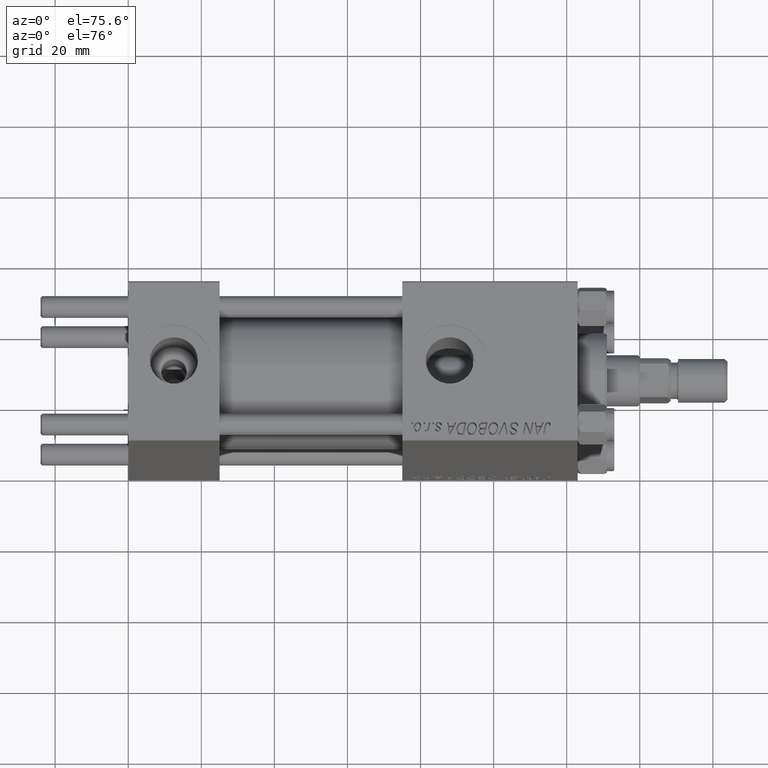
[diagram: clean part render]
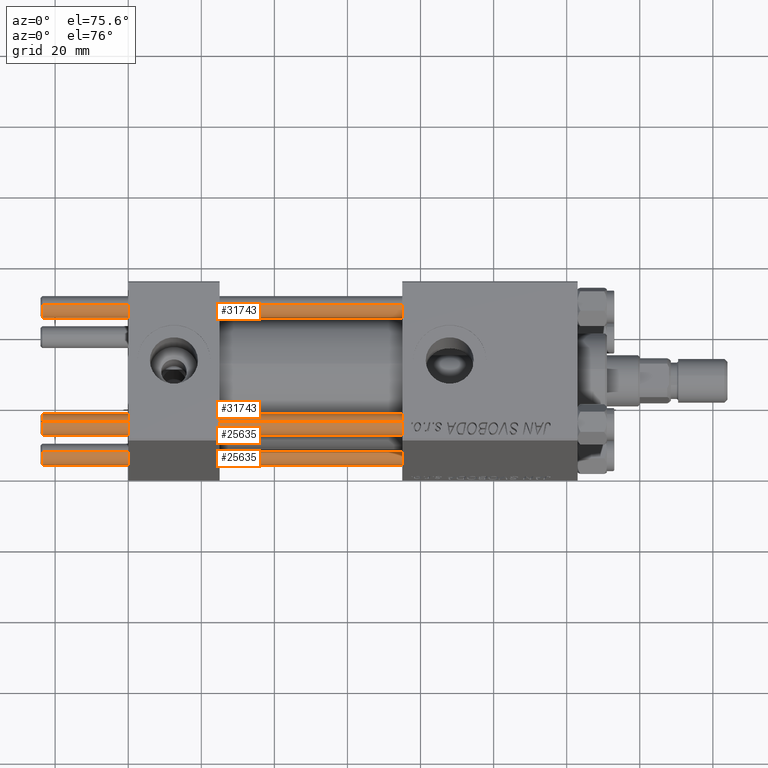
[diagram: same view with one multi-face feature highlighted, each face labeled with its STEP entity id]
A machine part, auxiliary view. The highlighted faces form ONE feature: a constant-radius fillet chain: 4 tangent blend faces with common blend radius 3 mm. The faces share edges in the B-rep.
Their STEP definitions:
[1] entity #31743 (Cylinder):
#1412 = ORIENTED_EDGE ( 'NONE', *, *, #13985, .F. ) ;
#1765 = EDGE_CURVE ( 'NONE', #4943, #39025, #11490, .T. ) ;
#3527 = EDGE_LOOP ( 'NONE', ( #1412, #29597, #15287, #28158 ) ) ;
#4943 = VERTEX_POINT ( 'NONE', #23508 ) ;
#5906 = DIRECTION ( 'NONE',  ( -0.000000000000000000, -0.000000000000000000, -1.000000000000000000 ) ) ;
#6917 = VECTOR ( 'NONE', #24463, 1000.000000000000000 ) ;
#7112 = CARTESIAN_POINT ( 'NONE',  ( 3.000000000000000444, 3.673940397442060361E-16, 157.0000000000000000 ) ) ;
#7113 = CARTESIAN_POINT ( 'NONE',  ( 0.000000000000000000, 0.000000000000000000, 156.5000000000000284 ) ) ;
#8027 = AXIS2_PLACEMENT_3D ( 'NONE', #7113, #38284, #23187 ) ;
#8826 = FACE_OUTER_BOUND ( 'NONE', #3527, .T. ) ;
#10663 = VERTEX_POINT ( 'NONE', #11849 ) ;
#11490 = CIRCLE ( 'NONE', #13197, 3.000000000000000444 ) ;
#11849 = CARTESIAN_POINT ( 'NONE',  ( 3.000000000000000444, 3.673940397442060361E-16, 156.5000000000000284 ) ) ;
#13197 = AXIS2_PLACEMENT_3D ( 'NONE', #50346, #22594, #34236 ) ;
#13305 = CARTESIAN_POINT ( 'NONE',  ( 0.000000000000000000, 0.000000000000000000, 157.0000000000000000 ) ) ;
#13985 = EDGE_CURVE ( 'NONE', #10663, #39025, #27156, .T. ) ;
#15287 = ORIENTED_EDGE ( 'NONE', *, *, #46477, .T. ) ;
#17244 = CYLINDRICAL_SURFACE ( 'NONE', #51083, 3.000000000000000444 ) ;
#18201 = DIRECTION ( 'NONE',  ( -0.000000000000000000, -0.000000000000000000, -1.000000000000000000 ) ) ;
#18368 = EDGE_CURVE ( 'NONE', #10663, #19441, #42587, .T. ) ;
#19441 = VERTEX_POINT ( 'NONE', #46559 ) ;
#21983 = DIRECTION ( 'NONE',  ( -1.000000000000000000, 0.000000000000000000, 0.000000000000000000 ) ) ;
#22594 = DIRECTION ( 'NONE',  ( -0.000000000000000000, -0.000000000000000000, 1.000000000000000000 ) ) ;
#23187 = DIRECTION ( 'NONE',  ( 1.000000000000000000, 0.000000000000000000, 0.000000000000000000 ) ) ;
#23508 = CARTESIAN_POINT ( 'NONE',  ( -3.000000000000000444, 0.000000000000000000, 0.4999999999999726885 ) ) ;
#24463 = DIRECTION ( 'NONE',  ( -0.000000000000000000, -0.000000000000000000, -1.000000000000000000 ) ) ;
#27156 = LINE ( 'NONE', #7112, #39061 ) ;
#28158 = ORIENTED_EDGE ( 'NONE', *, *, #1765, .T. ) ;
#29597 = ORIENTED_EDGE ( 'NONE', *, *, #18368, .T. ) ;
#31743 = ADVANCED_FACE ( 'NONE', ( #8826 ), #17244, .T. ) ;
#32149 = LINE ( 'NONE', #36892, #6917 ) ;
#34236 = DIRECTION ( 'NONE',  ( 1.000000000000000000, 0.000000000000000000, 0.000000000000000000 ) ) ;
#36892 = CARTESIAN_POINT ( 'NONE',  ( -3.000000000000000444, 0.000000000000000000, 157.0000000000000000 ) ) ;
#38284 = DIRECTION ( 'NONE',  ( 0.000000000000000000, 0.000000000000000000, -1.000000000000000000 ) ) ;
#39025 = VERTEX_POINT ( 'NONE', #41265 ) ;
#39061 = VECTOR ( 'NONE', #18201, 1000.000000000000000 ) ;
#41265 = CARTESIAN_POINT ( 'NONE',  ( 3.000000000000000444, 3.673940397442060361E-16, 0.4999999999999726885 ) ) ;
#42587 = CIRCLE ( 'NONE', #8027, 3.000000000000000444 ) ;
#46477 = EDGE_CURVE ( 'NONE', #19441, #4943, #32149, .T. ) ;
#46559 = CARTESIAN_POINT ( 'NONE',  ( -3.000000000000000444, 0.000000000000000000, 156.5000000000000284 ) ) ;
#50346 = CARTESIAN_POINT ( 'NONE',  ( 0.000000000000000000, 0.000000000000000000, 0.4999999999999726885 ) ) ;
#51083 = AXIS2_PLACEMENT_3D ( 'NONE', #13305, #5906, #21983 ) ;
[2] entity #25635 (Cylinder):
#4097 = EDGE_CURVE ( 'NONE', #39025, #4943, #42668, .T. ) ;
#4943 = VERTEX_POINT ( 'NONE', #23508 ) ;
#6917 = VECTOR ( 'NONE', #24463, 1000.000000000000000 ) ;
#7112 = CARTESIAN_POINT ( 'NONE',  ( 3.000000000000000444, 3.673940397442060361E-16, 157.0000000000000000 ) ) ;
#10663 = VERTEX_POINT ( 'NONE', #11849 ) ;
#11849 = CARTESIAN_POINT ( 'NONE',  ( 3.000000000000000444, 3.673940397442060361E-16, 156.5000000000000284 ) ) ;
#11960 = DIRECTION ( 'NONE',  ( 1.000000000000000000, 0.000000000000000000, 0.000000000000000000 ) ) ;
#13006 = CIRCLE ( 'NONE', #23948, 3.000000000000000444 ) ;
#13985 = EDGE_CURVE ( 'NONE', #10663, #39025, #27156, .T. ) ;
#14304 = ORIENTED_EDGE ( 'NONE', *, *, #16329, .T. ) ;
#16329 = EDGE_CURVE ( 'NONE', #19441, #10663, #13006, .T. ) ;
#18201 = DIRECTION ( 'NONE',  ( -0.000000000000000000, -0.000000000000000000, -1.000000000000000000 ) ) ;
#18645 = CYLINDRICAL_SURFACE ( 'NONE', #21433, 3.000000000000000444 ) ;
#19090 = CARTESIAN_POINT ( 'NONE',  ( 0.000000000000000000, 0.000000000000000000, 0.4999999999999726885 ) ) ;
#19441 = VERTEX_POINT ( 'NONE', #46559 ) ;
#21433 = AXIS2_PLACEMENT_3D ( 'NONE', #34508, #26573, #34766 ) ;
#22971 = CARTESIAN_POINT ( 'NONE',  ( 0.000000000000000000, 0.000000000000000000, 156.5000000000000284 ) ) ;
#23508 = CARTESIAN_POINT ( 'NONE',  ( -3.000000000000000444, 0.000000000000000000, 0.4999999999999726885 ) ) ;
#23948 = AXIS2_PLACEMENT_3D ( 'NONE', #22971, #25906, #42024 ) ;
#24463 = DIRECTION ( 'NONE',  ( -0.000000000000000000, -0.000000000000000000, -1.000000000000000000 ) ) ;
#25635 = ADVANCED_FACE ( 'NONE', ( #42954 ), #18645, .T. ) ;
#25906 = DIRECTION ( 'NONE',  ( 0.000000000000000000, 0.000000000000000000, -1.000000000000000000 ) ) ;
#26573 = DIRECTION ( 'NONE',  ( -0.000000000000000000, -0.000000000000000000, -1.000000000000000000 ) ) ;
#27156 = LINE ( 'NONE', #7112, #39061 ) ;
#27909 = EDGE_LOOP ( 'NONE', ( #14304, #36777, #41435, #51118 ) ) ;
#32149 = LINE ( 'NONE', #36892, #6917 ) ;
#34508 = CARTESIAN_POINT ( 'NONE',  ( 0.000000000000000000, 0.000000000000000000, 157.0000000000000000 ) ) ;
#34766 = DIRECTION ( 'NONE',  ( -1.000000000000000000, 0.000000000000000000, 0.000000000000000000 ) ) ;
#35727 = DIRECTION ( 'NONE',  ( -0.000000000000000000, -0.000000000000000000, 1.000000000000000000 ) ) ;
#36777 = ORIENTED_EDGE ( 'NONE', *, *, #13985, .T. ) ;
#36892 = CARTESIAN_POINT ( 'NONE',  ( -3.000000000000000444, 0.000000000000000000, 157.0000000000000000 ) ) ;
#39025 = VERTEX_POINT ( 'NONE', #41265 ) ;
#39061 = VECTOR ( 'NONE', #18201, 1000.000000000000000 ) ;
#39380 = AXIS2_PLACEMENT_3D ( 'NONE', #19090, #35727, #11960 ) ;
#41265 = CARTESIAN_POINT ( 'NONE',  ( 3.000000000000000444, 3.673940397442060361E-16, 0.4999999999999726885 ) ) ;
#41435 = ORIENTED_EDGE ( 'NONE', *, *, #4097, .T. ) ;
#42024 = DIRECTION ( 'NONE',  ( 1.000000000000000000, 0.000000000000000000, 0.000000000000000000 ) ) ;
#42668 = CIRCLE ( 'NONE', #39380, 3.000000000000000444 ) ;
#42954 = FACE_OUTER_BOUND ( 'NONE', #27909, .T. ) ;
#46477 = EDGE_CURVE ( 'NONE', #19441, #4943, #32149, .T. ) ;
#46559 = CARTESIAN_POINT ( 'NONE',  ( -3.000000000000000444, 0.000000000000000000, 156.5000000000000284 ) ) ;
#51118 = ORIENTED_EDGE ( 'NONE', *, *, #46477, .F. ) ;
[3] entity #31743 (Cylinder):
#1412 = ORIENTED_EDGE ( 'NONE', *, *, #13985, .F. ) ;
#1765 = EDGE_CURVE ( 'NONE', #4943, #39025, #11490, .T. ) ;
#3527 = EDGE_LOOP ( 'NONE', ( #1412, #29597, #15287, #28158 ) ) ;
#4943 = VERTEX_POINT ( 'NONE', #23508 ) ;
#5906 = DIRECTION ( 'NONE',  ( -0.000000000000000000, -0.000000000000000000, -1.000000000000000000 ) ) ;
#6917 = VECTOR ( 'NONE', #24463, 1000.000000000000000 ) ;
#7112 = CARTESIAN_POINT ( 'NONE',  ( 3.000000000000000444, 3.673940397442060361E-16, 157.0000000000000000 ) ) ;
#7113 = CARTESIAN_POINT ( 'NONE',  ( 0.000000000000000000, 0.000000000000000000, 156.5000000000000284 ) ) ;
#8027 = AXIS2_PLACEMENT_3D ( 'NONE', #7113, #38284, #23187 ) ;
#8826 = FACE_OUTER_BOUND ( 'NONE', #3527, .T. ) ;
#10663 = VERTEX_POINT ( 'NONE', #11849 ) ;
#11490 = CIRCLE ( 'NONE', #13197, 3.000000000000000444 ) ;
#11849 = CARTESIAN_POINT ( 'NONE',  ( 3.000000000000000444, 3.673940397442060361E-16, 156.5000000000000284 ) ) ;
#13197 = AXIS2_PLACEMENT_3D ( 'NONE', #50346, #22594, #34236 ) ;
#13305 = CARTESIAN_POINT ( 'NONE',  ( 0.000000000000000000, 0.000000000000000000, 157.0000000000000000 ) ) ;
#13985 = EDGE_CURVE ( 'NONE', #10663, #39025, #27156, .T. ) ;
#15287 = ORIENTED_EDGE ( 'NONE', *, *, #46477, .T. ) ;
#17244 = CYLINDRICAL_SURFACE ( 'NONE', #51083, 3.000000000000000444 ) ;
#18201 = DIRECTION ( 'NONE',  ( -0.000000000000000000, -0.000000000000000000, -1.000000000000000000 ) ) ;
#18368 = EDGE_CURVE ( 'NONE', #10663, #19441, #42587, .T. ) ;
#19441 = VERTEX_POINT ( 'NONE', #46559 ) ;
#21983 = DIRECTION ( 'NONE',  ( -1.000000000000000000, 0.000000000000000000, 0.000000000000000000 ) ) ;
#22594 = DIRECTION ( 'NONE',  ( -0.000000000000000000, -0.000000000000000000, 1.000000000000000000 ) ) ;
#23187 = DIRECTION ( 'NONE',  ( 1.000000000000000000, 0.000000000000000000, 0.000000000000000000 ) ) ;
#23508 = CARTESIAN_POINT ( 'NONE',  ( -3.000000000000000444, 0.000000000000000000, 0.4999999999999726885 ) ) ;
#24463 = DIRECTION ( 'NONE',  ( -0.000000000000000000, -0.000000000000000000, -1.000000000000000000 ) ) ;
#27156 = LINE ( 'NONE', #7112, #39061 ) ;
#28158 = ORIENTED_EDGE ( 'NONE', *, *, #1765, .T. ) ;
#29597 = ORIENTED_EDGE ( 'NONE', *, *, #18368, .T. ) ;
#31743 = ADVANCED_FACE ( 'NONE', ( #8826 ), #17244, .T. ) ;
#32149 = LINE ( 'NONE', #36892, #6917 ) ;
#34236 = DIRECTION ( 'NONE',  ( 1.000000000000000000, 0.000000000000000000, 0.000000000000000000 ) ) ;
#36892 = CARTESIAN_POINT ( 'NONE',  ( -3.000000000000000444, 0.000000000000000000, 157.0000000000000000 ) ) ;
#38284 = DIRECTION ( 'NONE',  ( 0.000000000000000000, 0.000000000000000000, -1.000000000000000000 ) ) ;
#39025 = VERTEX_POINT ( 'NONE', #41265 ) ;
#39061 = VECTOR ( 'NONE', #18201, 1000.000000000000000 ) ;
#41265 = CARTESIAN_POINT ( 'NONE',  ( 3.000000000000000444, 3.673940397442060361E-16, 0.4999999999999726885 ) ) ;
#42587 = CIRCLE ( 'NONE', #8027, 3.000000000000000444 ) ;
#46477 = EDGE_CURVE ( 'NONE', #19441, #4943, #32149, .T. ) ;
#46559 = CARTESIAN_POINT ( 'NONE',  ( -3.000000000000000444, 0.000000000000000000, 156.5000000000000284 ) ) ;
#50346 = CARTESIAN_POINT ( 'NONE',  ( 0.000000000000000000, 0.000000000000000000, 0.4999999999999726885 ) ) ;
#51083 = AXIS2_PLACEMENT_3D ( 'NONE', #13305, #5906, #21983 ) ;
[4] entity #25635 (Cylinder):
#4097 = EDGE_CURVE ( 'NONE', #39025, #4943, #42668, .T. ) ;
#4943 = VERTEX_POINT ( 'NONE', #23508 ) ;
#6917 = VECTOR ( 'NONE', #24463, 1000.000000000000000 ) ;
#7112 = CARTESIAN_POINT ( 'NONE',  ( 3.000000000000000444, 3.673940397442060361E-16, 157.0000000000000000 ) ) ;
#10663 = VERTEX_POINT ( 'NONE', #11849 ) ;
#11849 = CARTESIAN_POINT ( 'NONE',  ( 3.000000000000000444, 3.673940397442060361E-16, 156.5000000000000284 ) ) ;
#11960 = DIRECTION ( 'NONE',  ( 1.000000000000000000, 0.000000000000000000, 0.000000000000000000 ) ) ;
#13006 = CIRCLE ( 'NONE', #23948, 3.000000000000000444 ) ;
#13985 = EDGE_CURVE ( 'NONE', #10663, #39025, #27156, .T. ) ;
#14304 = ORIENTED_EDGE ( 'NONE', *, *, #16329, .T. ) ;
#16329 = EDGE_CURVE ( 'NONE', #19441, #10663, #13006, .T. ) ;
#18201 = DIRECTION ( 'NONE',  ( -0.000000000000000000, -0.000000000000000000, -1.000000000000000000 ) ) ;
#18645 = CYLINDRICAL_SURFACE ( 'NONE', #21433, 3.000000000000000444 ) ;
#19090 = CARTESIAN_POINT ( 'NONE',  ( 0.000000000000000000, 0.000000000000000000, 0.4999999999999726885 ) ) ;
#19441 = VERTEX_POINT ( 'NONE', #46559 ) ;
#21433 = AXIS2_PLACEMENT_3D ( 'NONE', #34508, #26573, #34766 ) ;
#22971 = CARTESIAN_POINT ( 'NONE',  ( 0.000000000000000000, 0.000000000000000000, 156.5000000000000284 ) ) ;
#23508 = CARTESIAN_POINT ( 'NONE',  ( -3.000000000000000444, 0.000000000000000000, 0.4999999999999726885 ) ) ;
#23948 = AXIS2_PLACEMENT_3D ( 'NONE', #22971, #25906, #42024 ) ;
#24463 = DIRECTION ( 'NONE',  ( -0.000000000000000000, -0.000000000000000000, -1.000000000000000000 ) ) ;
#25635 = ADVANCED_FACE ( 'NONE', ( #42954 ), #18645, .T. ) ;
#25906 = DIRECTION ( 'NONE',  ( 0.000000000000000000, 0.000000000000000000, -1.000000000000000000 ) ) ;
#26573 = DIRECTION ( 'NONE',  ( -0.000000000000000000, -0.000000000000000000, -1.000000000000000000 ) ) ;
#27156 = LINE ( 'NONE', #7112, #39061 ) ;
#27909 = EDGE_LOOP ( 'NONE', ( #14304, #36777, #41435, #51118 ) ) ;
#32149 = LINE ( 'NONE', #36892, #6917 ) ;
#34508 = CARTESIAN_POINT ( 'NONE',  ( 0.000000000000000000, 0.000000000000000000, 157.0000000000000000 ) ) ;
#34766 = DIRECTION ( 'NONE',  ( -1.000000000000000000, 0.000000000000000000, 0.000000000000000000 ) ) ;
#35727 = DIRECTION ( 'NONE',  ( -0.000000000000000000, -0.000000000000000000, 1.000000000000000000 ) ) ;
#36777 = ORIENTED_EDGE ( 'NONE', *, *, #13985, .T. ) ;
#36892 = CARTESIAN_POINT ( 'NONE',  ( -3.000000000000000444, 0.000000000000000000, 157.0000000000000000 ) ) ;
#39025 = VERTEX_POINT ( 'NONE', #41265 ) ;
#39061 = VECTOR ( 'NONE', #18201, 1000.000000000000000 ) ;
#39380 = AXIS2_PLACEMENT_3D ( 'NONE', #19090, #35727, #11960 ) ;
#41265 = CARTESIAN_POINT ( 'NONE',  ( 3.000000000000000444, 3.673940397442060361E-16, 0.4999999999999726885 ) ) ;
#41435 = ORIENTED_EDGE ( 'NONE', *, *, #4097, .T. ) ;
#42024 = DIRECTION ( 'NONE',  ( 1.000000000000000000, 0.000000000000000000, 0.000000000000000000 ) ) ;
#42668 = CIRCLE ( 'NONE', #39380, 3.000000000000000444 ) ;
#42954 = FACE_OUTER_BOUND ( 'NONE', #27909, .T. ) ;
#46477 = EDGE_CURVE ( 'NONE', #19441, #4943, #32149, .T. ) ;
#46559 = CARTESIAN_POINT ( 'NONE',  ( -3.000000000000000444, 0.000000000000000000, 156.5000000000000284 ) ) ;
#51118 = ORIENTED_EDGE ( 'NONE', *, *, #46477, .F. ) ;